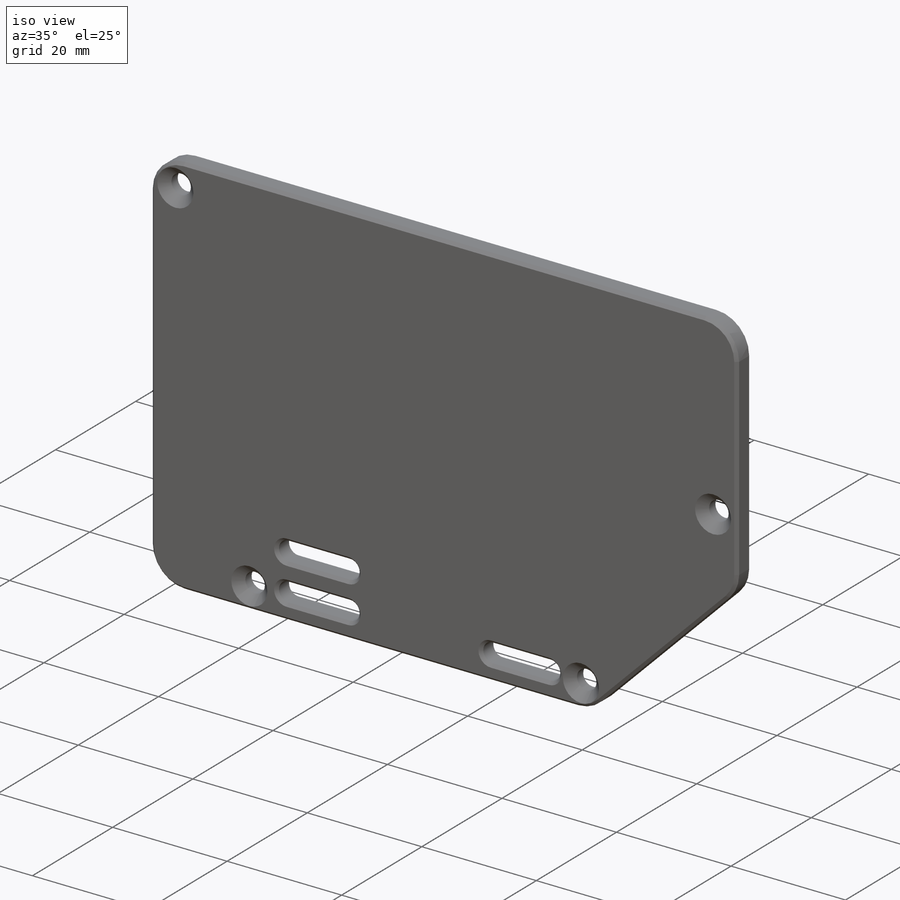
[diagram: iso view]
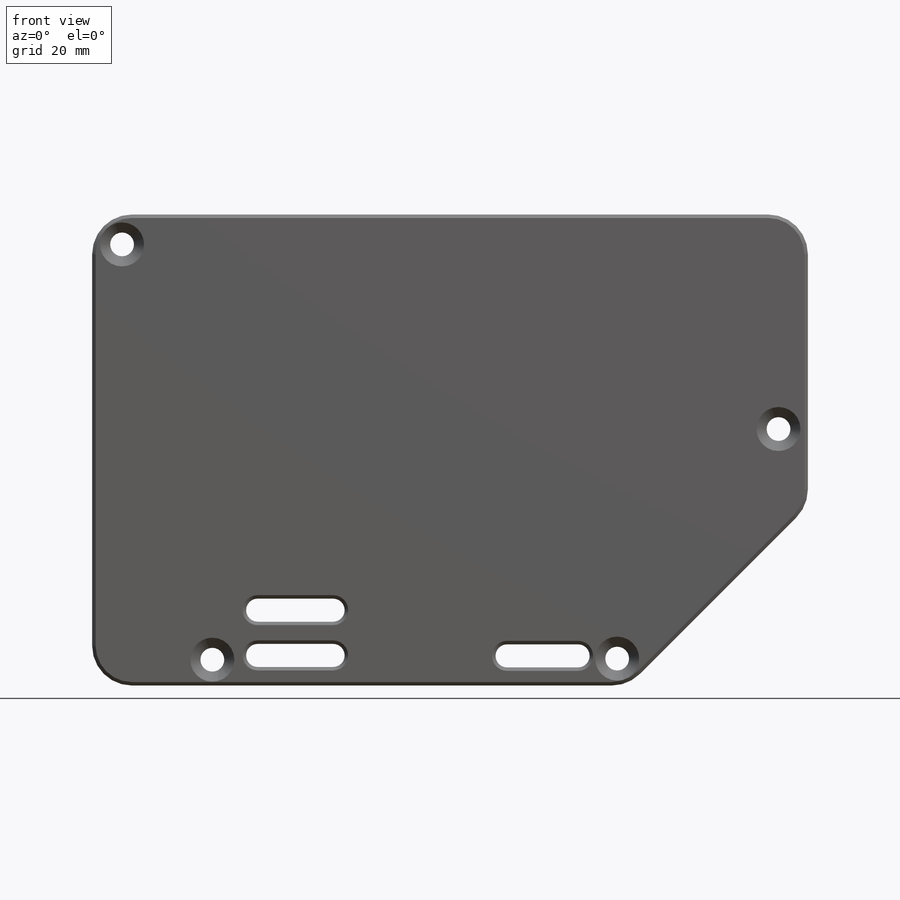
[diagram: front view]
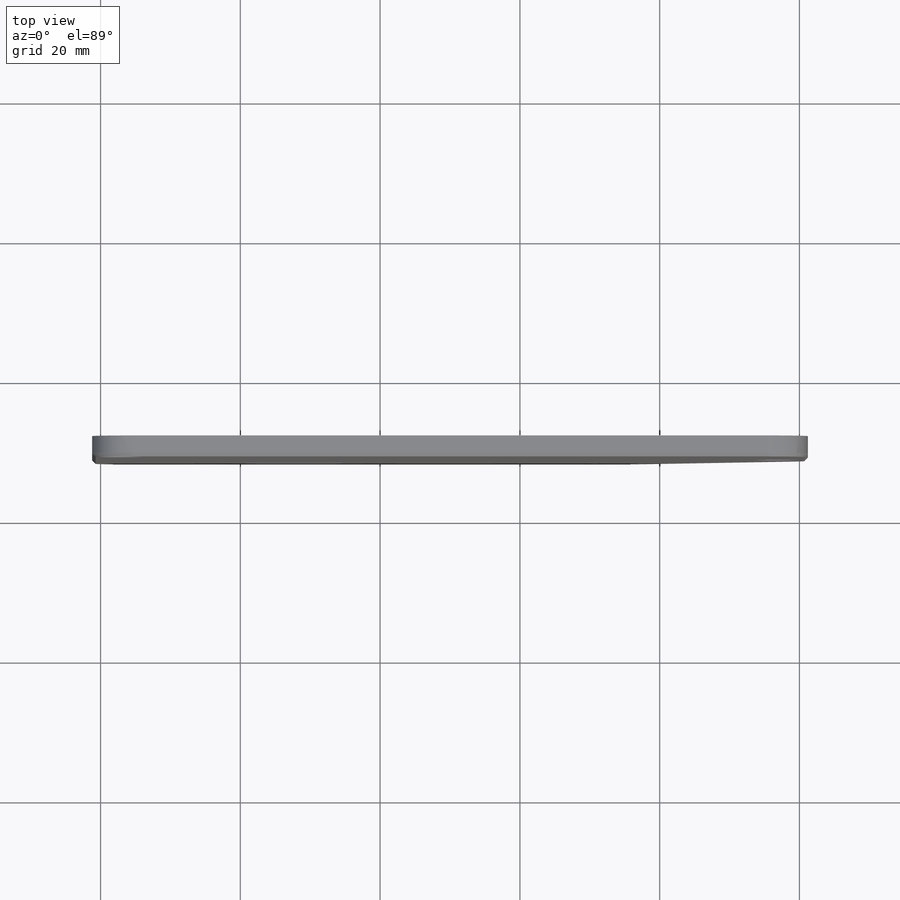
[diagram: top view]
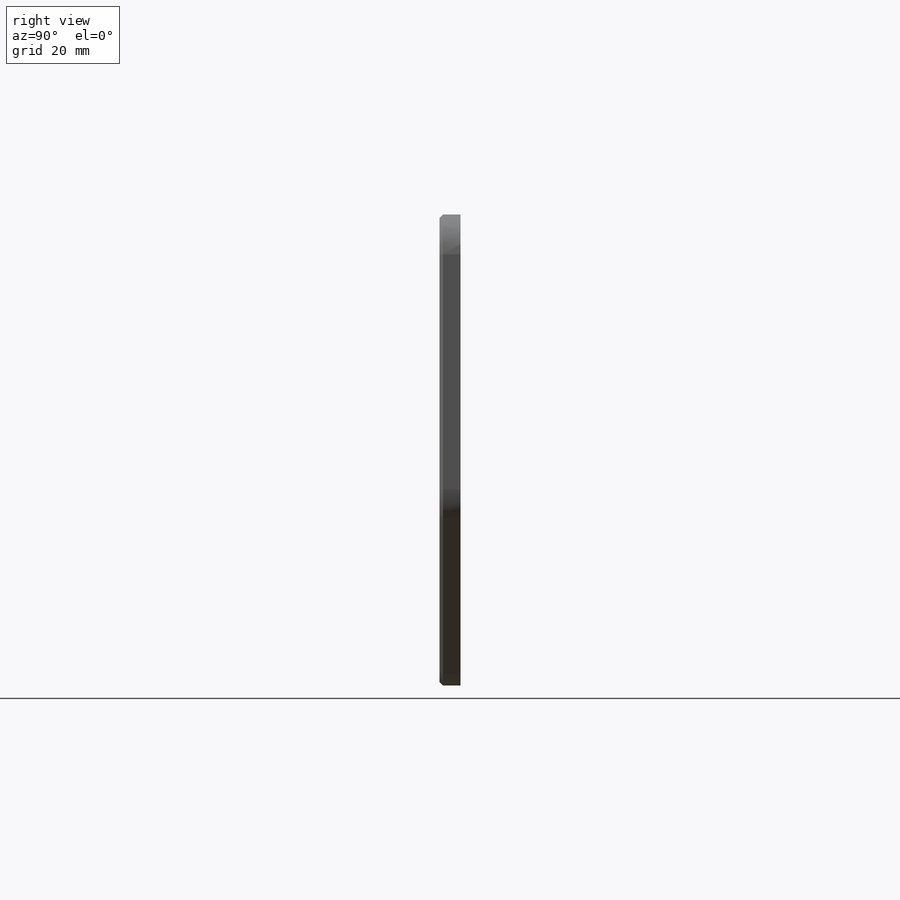
[diagram: right view]
SOLIDWORKS PART (.sldprt)
format: sldprt  version: not decoded by parser v0  size: 541,184 bytes
history: native  units: mm
features: sketch x5, material x1, extrude x1, hole x1, cut_extrude x1, chamfer x1 (+11 scaffold rows collapsed)
feature tree (21):
  scaffold x11  (default folders/planes/origin — collapsed)
  material  "Material <not specified>"
  sketch  "Sketch2"  dims[c1.D1=2.0mm c1.D2=3.0mm c2.D1=0.3mm]
  extrude  "Boss-Extrude1"  Depth=3mm
  hole  "CSK for M3 Flat Head Machine Screw1"  Diameter=3.4mm Depth=3mm
  sketch  "Sketch4"
  sketch  "Sketch5"  dims[hole-wizard template sketch: 59 standard entries collapsed; hole parameters above]
  sketch  "Sketch6"  dims[c1.D1=8.255mm c1.D2=5.715mm c1.D3=2.54mm c1.D4=3.302mm c2.D1=3.302mm c2.D2=3.175mm c2.D3=10.795mm]
  cut_extrude  "Cut-Extrude1"  [1 undecoded]
  sketch  "Sketch7"  dims[c1.D1=6.35mm c1.D2=6.35mm c2.D1=~28.974748mm c2.D2=~41.131518mm c3.D1=~40.497471mm c3.D2=~45.834344mm c4.D1=0.635mm c4.D2=0.635mm]
  chamfer  "Chamfer1"  Distance=0.5mm Angle=45deg
decode coverage: 7 of 9 modeling features carry decoded parameters
note: ~ marks probable driven/reference dimensions
note: 1 parameter value undecoded
note: suppression state not decoded; provenance and decode notes live in map.json
